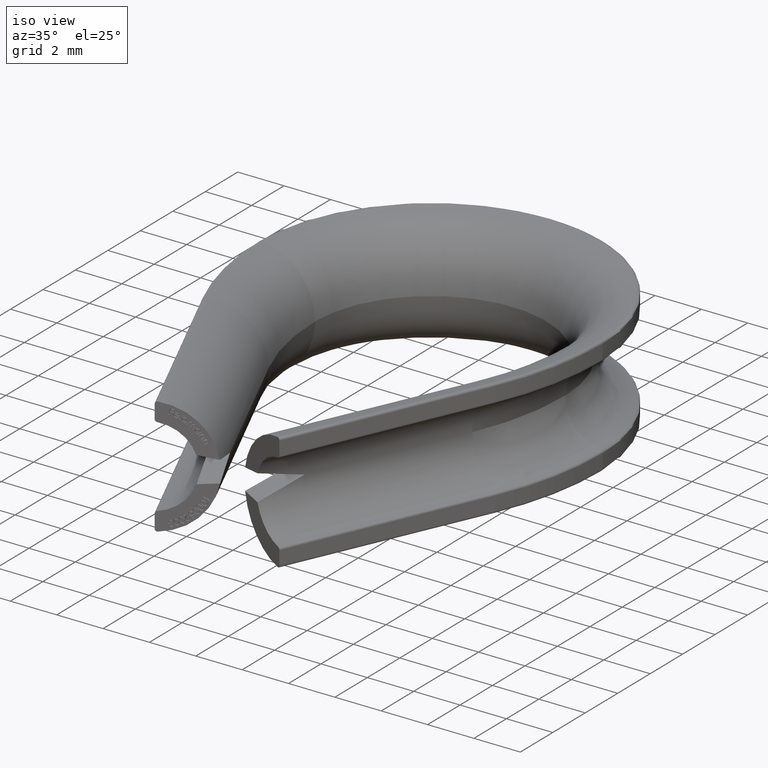
[diagram: clean part render]
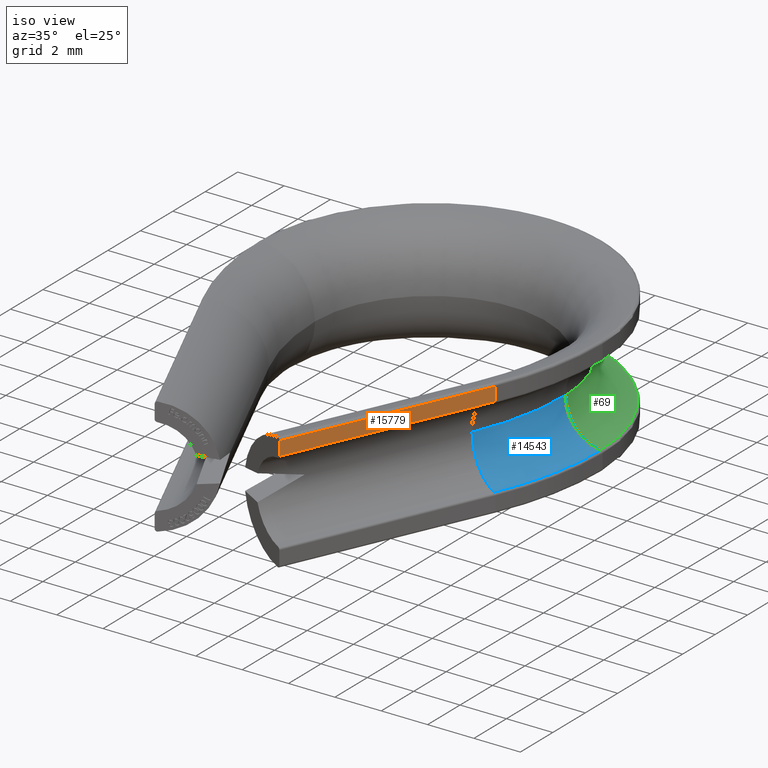
[diagram: same view with three faces highlighted in distinct colors, each labeled with its STEP entity id]
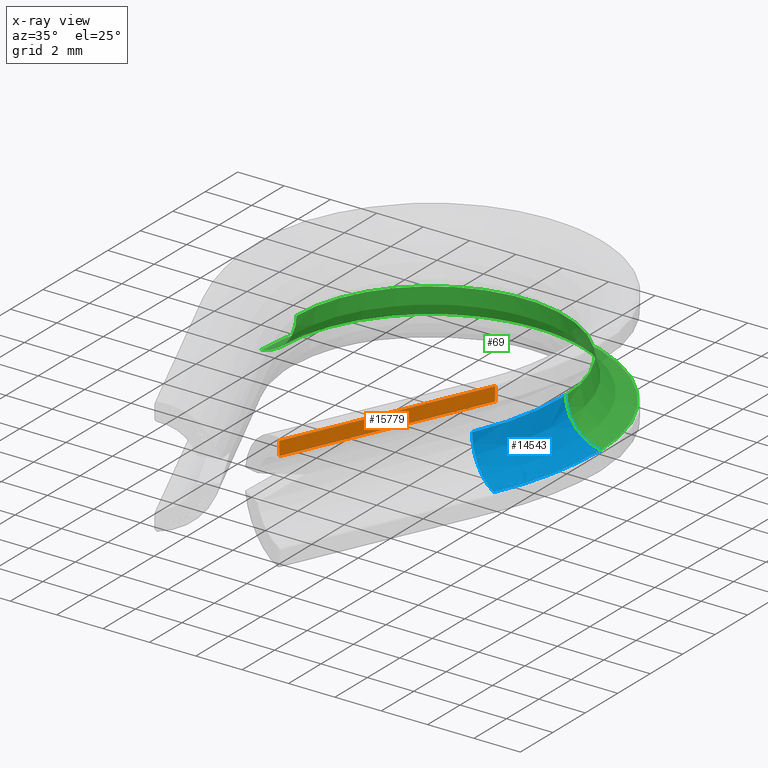
[diagram: x-ray of the same camera — body ghosted, the three highlighted faces saturated]
A machine part, iso view with three faces highlighted in distinct colors.
The next image is the same camera in x-ray (body ghosted, the three faces saturated) — at least one of them is partly hidden behind the body in this view.
Their STEP definitions:

[orange] entity #15779 — the highlighted planar face has unit normal (0.9129, -0.4081, 0).
#254 = FACE_OUTER_BOUND ( 'NONE', #5301, .T. ) ;
#332 = DIRECTION ( 'NONE',  ( 0.0000000000000000000, 0.0000000000000000000, 1.000000000000000000 ) ) ;
#591 = VERTEX_POINT ( 'NONE', #10648 ) ;
#1013 = DIRECTION ( 'NONE',  ( 0.4081025892316911800, 0.9129360747951575900, 0.0000000000000000000 ) ) ;
#1225 = EDGE_CURVE ( 'NONE', #8755, #15196, #7516, .T. ) ;
#1618 = LINE ( 'NONE', #8993, #3492 ) ;
#1992 = LINE ( 'NONE', #4334, #14498 ) ;
#3072 = EDGE_CURVE ( 'NONE', #15196, #591, #15533, .T. ) ;
#3218 = CARTESIAN_POINT ( 'NONE',  ( 6.320407327459953700, 7.139527893527028500, 1.833030277982336000 ) ) ;
#3240 = CARTESIAN_POINT ( 'NONE',  ( 6.320407327459953700, 7.139527893527028500, 2.545584412271571000 ) ) ;
#3492 = VECTOR ( 'NONE', #7764, 1000.000000000000000 ) ;
#4334 = CARTESIAN_POINT ( 'NONE',  ( 6.320407327459953700, 7.139527893527028500, 2.437211521390787900 ) ) ;
#5301 = EDGE_LOOP ( 'NONE', ( #7272, #12245, #8946, #9470 ) ) ;
#5452 = VECTOR ( 'NONE', #332, 1000.000000000000000 ) ;
#6499 = AXIS2_PLACEMENT_3D ( 'NONE', #3240, #11726, #1013 ) ;
#7272 = ORIENTED_EDGE ( 'NONE', *, *, #12736, .F. ) ;
#7516 = LINE ( 'NONE', #14286, #9212 ) ;
#7764 = DIRECTION ( 'NONE',  ( 0.0000000000000000000, 0.0000000000000000000, 1.000000000000000000 ) ) ;
#8394 = VERTEX_POINT ( 'NONE', #15272 ) ;
#8755 = VERTEX_POINT ( 'NONE', #11047 ) ;
#8846 = CARTESIAN_POINT ( 'NONE',  ( 6.320407327459953700, 7.139527893527028500, 2.545584412271571000 ) ) ;
#8946 = ORIENTED_EDGE ( 'NONE', *, *, #3072, .T. ) ;
#8993 = CARTESIAN_POINT ( 'NONE',  ( 2.691046579508378200, -0.9794462141560602600, 2.545584412271571000 ) ) ;
#9212 = VECTOR ( 'NONE', #10805, 1000.000000000000000 ) ;
#9322 = EDGE_CURVE ( 'NONE', #591, #8394, #1992, .T. ) ;
#9470 = ORIENTED_EDGE ( 'NONE', *, *, #9322, .T. ) ;
#10648 = CARTESIAN_POINT ( 'NONE',  ( 6.320407327459953700, 7.139527893527028500, 2.437211521390787900 ) ) ;
#10805 = DIRECTION ( 'NONE',  ( 0.4081025892316911800, 0.9129360747951575900, -0.0000000000000000000 ) ) ;
#11047 = CARTESIAN_POINT ( 'NONE',  ( 2.691046579508378200, -0.9794462141560602600, 1.833030277982335800 ) ) ;
#11726 = DIRECTION ( 'NONE',  ( 0.9129360747951575900, -0.4081025892316911800, 0.0000000000000000000 ) ) ;
#12245 = ORIENTED_EDGE ( 'NONE', *, *, #1225, .T. ) ;
#12736 = EDGE_CURVE ( 'NONE', #8755, #8394, #1618, .T. ) ;
#13136 = PLANE ( 'NONE',  #6499 ) ;
#13169 = DIRECTION ( 'NONE',  ( -0.4081025892316911800, -0.9129360747951575900, 0.0000000000000000000 ) ) ;
#14286 = CARTESIAN_POINT ( 'NONE',  ( 6.320407327459953700, 7.139527893527028500, 1.833030277982335800 ) ) ;
#14498 = VECTOR ( 'NONE', #13169, 1000.000000000000000 ) ;
#15196 = VERTEX_POINT ( 'NONE', #3218 ) ;
#15272 = CARTESIAN_POINT ( 'NONE',  ( 2.691046579508378200, -0.9794462141560602600, 2.437211521390787900 ) ) ;
#15533 = LINE ( 'NONE', #8846, #5452 ) ;
#15779 = ADVANCED_FACE ( 'NONE', ( #254 ), #13136, .T. ) ;

[blue] entity #14543 — the highlighted toroidal blend (fillet) surface has major radius 12.55 mm and minor (blend) radius 1.75 mm.
#192 = EDGE_CURVE ( 'NONE', #1302, #9877, #6876, .T. ) ;
#864 = FACE_OUTER_BOUND ( 'NONE', #6058, .T. ) ;
#1249 = CARTESIAN_POINT ( 'NONE',  ( 4.859709607787703300, 7.792492036297733900, 2.143131898507868300E-016 ) ) ;
#1258 = CARTESIAN_POINT ( 'NONE',  ( 7.550000000000000700, 12.19999999999999900, 0.0000000000000000000 ) ) ;
#1302 = VERTEX_POINT ( 'NONE', #6255 ) ;
#1757 = DIRECTION ( 'NONE',  ( -1.000000000000000000, 0.0000000000000000000, 0.0000000000000000000 ) ) ;
#2048 = DIRECTION ( 'NONE',  ( 0.4081025892316913500, 0.9129360747951577000, 0.0000000000000000000 ) ) ;
#2115 = VERTEX_POINT ( 'NONE', #1249 ) ;
#2380 = DIRECTION ( 'NONE',  ( 1.000000000000000000, 0.0000000000000000000, 0.0000000000000000000 ) ) ;
#2976 = DIRECTION ( 'NONE',  ( -0.0000000000000000000, -0.0000000000000000000, -1.000000000000000000 ) ) ;
#3622 = EDGE_CURVE ( 'NONE', #9877, #5081, #8264, .T. ) ;
#4033 = EDGE_CURVE ( 'NONE', #5081, #2115, #5393, .T. ) ;
#4085 = TOROIDAL_SURFACE ( 'NONE', #12827, 12.55000000000000200, 1.750000000000000000 ) ;
#4430 = DIRECTION ( 'NONE',  ( 0.0000000000000000000, 0.0000000000000000000, -1.000000000000000000 ) ) ;
#5081 = VERTEX_POINT ( 'NONE', #11071 ) ;
#5393 = CIRCLE ( 'NONE', #7277, 10.80000000000000100 ) ;
#5618 = EDGE_CURVE ( 'NONE', #1302, #2115, #8649, .T. ) ;
#6058 = EDGE_LOOP ( 'NONE', ( #8514, #9603, #10021, #15377 ) ) ;
#6255 = CARTESIAN_POINT ( 'NONE',  ( 6.241450693962735700, 7.174823252596350000, -1.733947560253128200 ) ) ;
#6876 = CIRCLE ( 'NONE', #12971, 12.31351351351357300 ) ;
#7277 = AXIS2_PLACEMENT_3D ( 'NONE', #12050, #13288, #15711 ) ;
#8264 = CIRCLE ( 'NONE', #14975, 1.750000000000000000 ) ;
#8514 = ORIENTED_EDGE ( 'NONE', *, *, #3622, .T. ) ;
#8649 = CIRCLE ( 'NONE', #10019, 1.750000000000000000 ) ;
#9598 = CARTESIAN_POINT ( 'NONE',  ( -5.000000000000000900, 12.19999999999999900, -1.733947560253128200 ) ) ;
#9603 = ORIENTED_EDGE ( 'NONE', *, *, #4033, .T. ) ;
#9645 = DIRECTION ( 'NONE',  ( 0.0000000000000000000, 0.0000000000000000000, 1.000000000000000000 ) ) ;
#9759 = DIRECTION ( 'NONE',  ( 1.608122649676636600E-016, 1.000000000000000000, -0.0000000000000000000 ) ) ;
#9877 = VERTEX_POINT ( 'NONE', #13058 ) ;
#10019 = AXIS2_PLACEMENT_3D ( 'NONE', #14187, #2048, #4430 ) ;
#10021 = ORIENTED_EDGE ( 'NONE', *, *, #5618, .F. ) ;
#10732 = DIRECTION ( 'NONE',  ( 0.0000000000000000000, 0.0000000000000000000, -1.000000000000000000 ) ) ;
#11071 = CARTESIAN_POINT ( 'NONE',  ( 5.800000000000001600, 12.19999999999999900, 2.143131898507868500E-016 ) ) ;
#12050 = CARTESIAN_POINT ( 'NONE',  ( -5.000000000000000900, 12.19999999999999900, 2.143131898507868300E-016 ) ) ;
#12827 = AXIS2_PLACEMENT_3D ( 'NONE', #12863, #2976, #1757 ) ;
#12863 = CARTESIAN_POINT ( 'NONE',  ( -5.000000000000000900, 12.19999999999999900, 0.0000000000000000000 ) ) ;
#12971 = AXIS2_PLACEMENT_3D ( 'NONE', #9598, #9645, #2380 ) ;
#13058 = CARTESIAN_POINT ( 'NONE',  ( 7.313513513512511100, 12.19999999999999900, -1.733947560253281700 ) ) ;
#13288 = DIRECTION ( 'NONE',  ( -0.0000000000000000000, -0.0000000000000000000, -1.000000000000000000 ) ) ;
#14187 = CARTESIAN_POINT ( 'NONE',  ( 6.457347738679229300, 7.078312505142274200, 0.0000000000000000000 ) ) ;
#14543 = ADVANCED_FACE ( 'NONE', ( #864 ), #4085, .F. ) ;
#14975 = AXIS2_PLACEMENT_3D ( 'NONE', #1258, #9759, #10732 ) ;
#15377 = ORIENTED_EDGE ( 'NONE', *, *, #192, .T. ) ;
#15711 = DIRECTION ( 'NONE',  ( -1.000000000000000000, 0.0000000000000000000, 0.0000000000000000000 ) ) ;

[green] entity #69 — the highlighted toroidal blend (fillet) surface has major radius 7.55 mm and minor (blend) radius 1.75 mm.
#69 = ADVANCED_FACE ( 'NONE', ( #2326 ), #2149, .F. ) ;
#610 = CIRCLE ( 'NONE', #4296, 5.800000000000001600 ) ;
#723 = VERTEX_POINT ( 'NONE', #869 ) ;
#869 = CARTESIAN_POINT ( 'NONE',  ( -7.313513513512511100, 12.19999999999999900, -1.733947560253281700 ) ) ;
#1258 = CARTESIAN_POINT ( 'NONE',  ( 7.550000000000000700, 12.19999999999999900, 0.0000000000000000000 ) ) ;
#1896 = EDGE_CURVE ( 'NONE', #5081, #11718, #610, .T. ) ;
#2062 = ORIENTED_EDGE ( 'NONE', *, *, #1896, .F. ) ;
#2131 = CARTESIAN_POINT ( 'NONE',  ( 0.0000000000000000000, 12.19999999999999900, 0.0000000000000000000 ) ) ;
#2149 = TOROIDAL_SURFACE ( 'NONE', #14565, 7.550000000000000700, 1.750000000000000000 ) ;
#2326 = FACE_OUTER_BOUND ( 'NONE', #5664, .T. ) ;
#3164 = DIRECTION ( 'NONE',  ( 0.0000000000000000000, 0.0000000000000000000, 1.000000000000000000 ) ) ;
#3308 = EDGE_CURVE ( 'NONE', #723, #11718, #12507, .T. ) ;
#3398 = EDGE_CURVE ( 'NONE', #9877, #723, #14177, .T. ) ;
#3622 = EDGE_CURVE ( 'NONE', #9877, #5081, #8264, .T. ) ;
#4161 = CARTESIAN_POINT ( 'NONE',  ( -5.800000000000001600, 12.19999999999999900, -2.143131898507868500E-016 ) ) ;
#4296 = AXIS2_PLACEMENT_3D ( 'NONE', #10453, #3164, #11653 ) ;
#4935 = DIRECTION ( 'NONE',  ( 0.0000000000000000000, 0.0000000000000000000, -1.000000000000000000 ) ) ;
#5081 = VERTEX_POINT ( 'NONE', #11071 ) ;
#5664 = EDGE_LOOP ( 'NONE', ( #2062, #7639, #12486, #7961 ) ) ;
#7108 = DIRECTION ( 'NONE',  ( 0.0000000000000000000, 0.0000000000000000000, 1.000000000000000000 ) ) ;
#7639 = ORIENTED_EDGE ( 'NONE', *, *, #3622, .F. ) ;
#7961 = ORIENTED_EDGE ( 'NONE', *, *, #3308, .T. ) ;
#8264 = CIRCLE ( 'NONE', #14975, 1.750000000000000000 ) ;
#9759 = DIRECTION ( 'NONE',  ( 1.608122649676636600E-016, 1.000000000000000000, -0.0000000000000000000 ) ) ;
#9877 = VERTEX_POINT ( 'NONE', #13058 ) ;
#10249 = CARTESIAN_POINT ( 'NONE',  ( 0.0000000000000000000, 12.19999999999999900, -1.733947560253281700 ) ) ;
#10408 = DIRECTION ( 'NONE',  ( 1.000000000000000000, 0.0000000000000000000, 0.0000000000000000000 ) ) ;
#10453 = CARTESIAN_POINT ( 'NONE',  ( 0.0000000000000000000, 12.19999999999999900, -2.143131898507868300E-016 ) ) ;
#10732 = DIRECTION ( 'NONE',  ( 0.0000000000000000000, 0.0000000000000000000, -1.000000000000000000 ) ) ;
#10963 = CARTESIAN_POINT ( 'NONE',  ( -7.550000000000000700, 12.19999999999999900, 0.0000000000000000000 ) ) ;
#11071 = CARTESIAN_POINT ( 'NONE',  ( 5.800000000000001600, 12.19999999999999900, 2.143131898507868500E-016 ) ) ;
#11470 = DIRECTION ( 'NONE',  ( 0.0000000000000000000, 0.0000000000000000000, 1.000000000000000000 ) ) ;
#11653 = DIRECTION ( 'NONE',  ( 1.000000000000000000, 0.0000000000000000000, 0.0000000000000000000 ) ) ;
#11718 = VERTEX_POINT ( 'NONE', #4161 ) ;
#12286 = DIRECTION ( 'NONE',  ( 1.608122649676636600E-016, -1.000000000000000000, 0.0000000000000000000 ) ) ;
#12486 = ORIENTED_EDGE ( 'NONE', *, *, #3398, .T. ) ;
#12507 = CIRCLE ( 'NONE', #14465, 1.750000000000000000 ) ;
#13058 = CARTESIAN_POINT ( 'NONE',  ( 7.313513513512511100, 12.19999999999999900, -1.733947560253281700 ) ) ;
#13381 = AXIS2_PLACEMENT_3D ( 'NONE', #10249, #11470, #10408 ) ;
#14177 = CIRCLE ( 'NONE', #13381, 7.313513513513556500 ) ;
#14465 = AXIS2_PLACEMENT_3D ( 'NONE', #10963, #12286, #4935 ) ;
#14565 = AXIS2_PLACEMENT_3D ( 'NONE', #2131, #7108, #15590 ) ;
#14975 = AXIS2_PLACEMENT_3D ( 'NONE', #1258, #9759, #10732 ) ;
#15590 = DIRECTION ( 'NONE',  ( 1.000000000000000000, 0.0000000000000000000, 0.0000000000000000000 ) ) ;